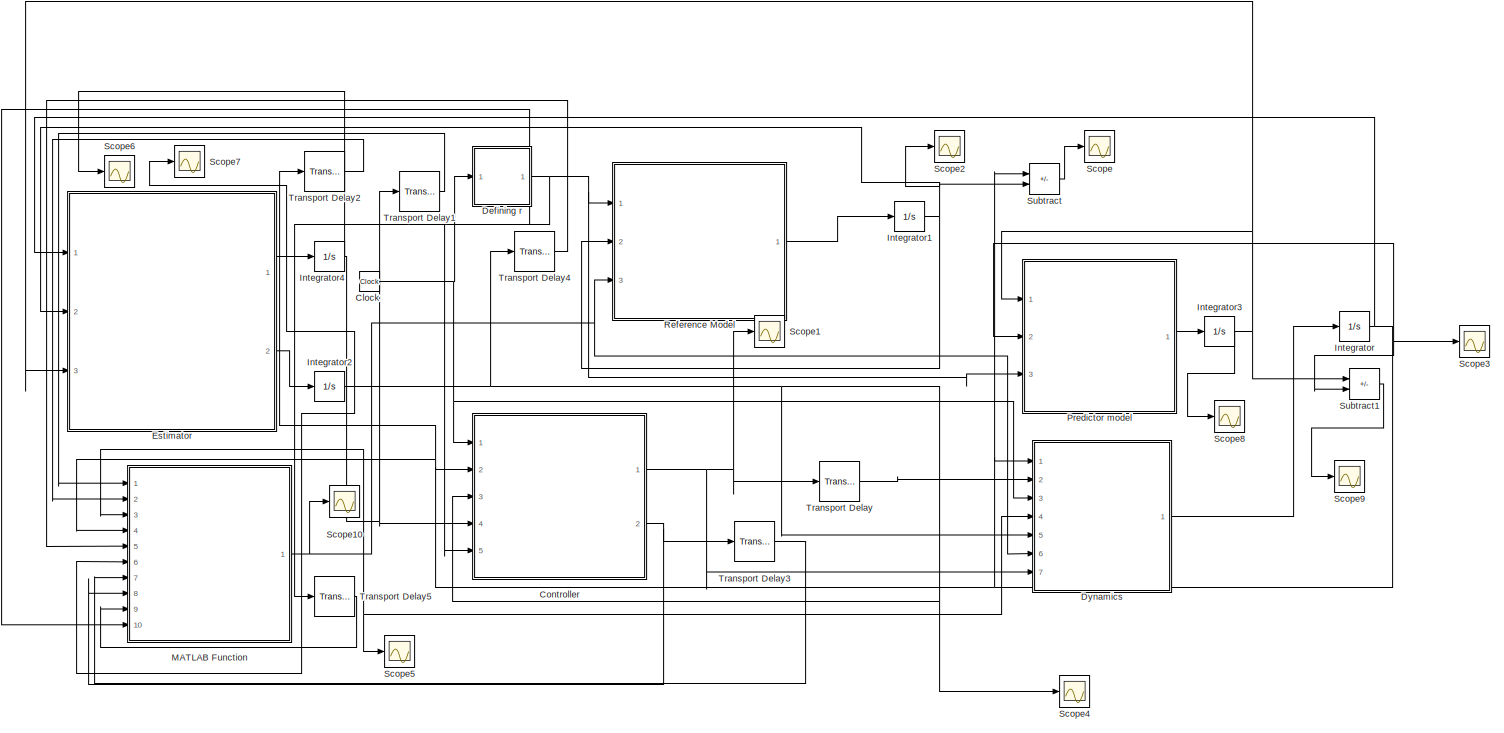
[diagram: root canvas - part 1/1, most of the canvas]
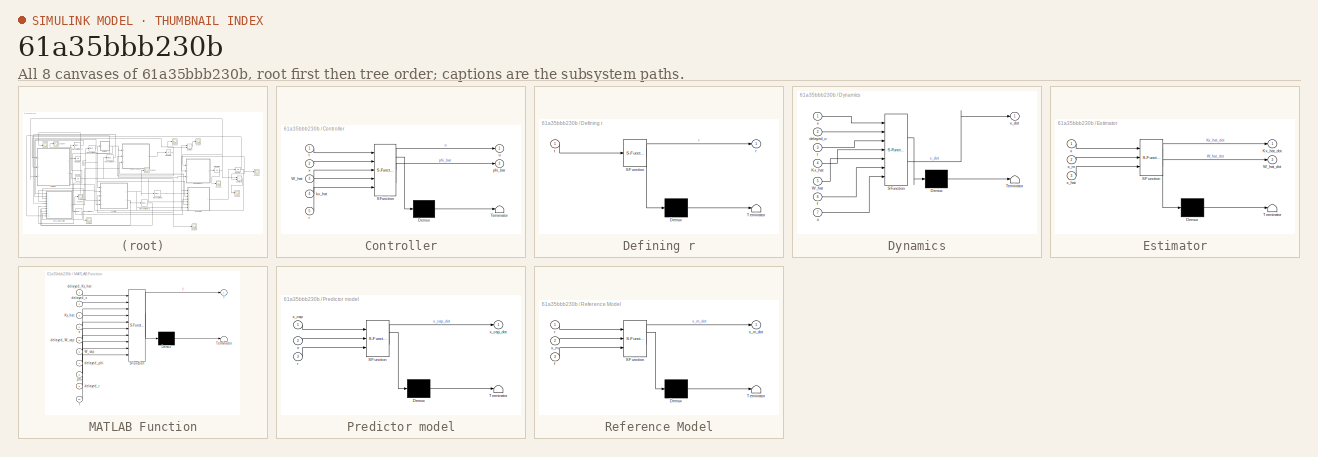
[diagram: thumbnail index - all 8 canvases of the model, root first then tree order]
MODEL slx_61a35bbb230b
KIND model
CONFIG AbsTol = auto
CONFIG EnableMultiTasking = on
CONFIG FixedStep = 0.1
CONFIG MaxStep = auto
CONFIG MinStep = auto
CONFIG RelTol = 1e-1
CONFIG SampleTimeConstraint = Unconstrained
CONFIG SolverName = VariableStepAuto
CONFIG StartTime = 0.0
CONFIG StopTime = 100
BLOCK [Clock] Clock
  Decimation = 50
BLOCK [SubSystem] Controller
  ErrorFcn = Stateflow.Translate.translate
  PermitHierarchicalResolution = ExplicitOnly
  Ports = [5, 2]
  RequestExecContextInheritance = off
  SFBlockType = MATLAB Function
  TreatAsAtomicUnit = on
BLOCK [Demux] Controller/ Demux 
  Outputs = 1
  Ports = [1, 1]
BLOCK [S-Function] Controller/ SFunction 
  EnableBusSupport = on
  FunctionName = sf_sfun
  PortCounts = [5 3]
  Ports = [5, 3]
  SFcnIsStateOwnerBlock = off
  SFunctionDeploymentMode = off
  Tag = Stateflow S-Function 1
BLOCK [Terminator] Controller/ Terminator 
BLOCK [Inport] Controller/W_hat
  Port = 3
BLOCK [Inport] Controller/kx_hat
  Port = 4
BLOCK [Outport] Controller/phi_bar
  Port = 2
BLOCK [Inport] Controller/r
  Port = 5
BLOCK [Inport] Controller/t
BLOCK [Outport] Controller/u
BLOCK [Inport] Controller/x
  Port = 2
BLOCK [SubSystem] Defining r
  ErrorFcn = Stateflow.Translate.translate
  PermitHierarchicalResolution = ExplicitOnly
  Ports = [1, 1]
  RequestExecContextInheritance = off
  SFBlockType = MATLAB Function
  TreatAsAtomicUnit = on
BLOCK [Demux] Defining r/ Demux 
  Outputs = 1
  Ports = [1, 1]
BLOCK [S-Function] Defining r/ SFunction 
  EnableBusSupport = on
  FunctionName = sf_sfun
  PortCounts = [1 2]
  Ports = [1, 2]
  SFcnIsStateOwnerBlock = off
  SFunctionDeploymentMode = off
  Tag = Stateflow S-Function 7
BLOCK [Terminator] Defining r/ Terminator 
BLOCK [Outport] Defining r/r
BLOCK [Inport] Defining r/t
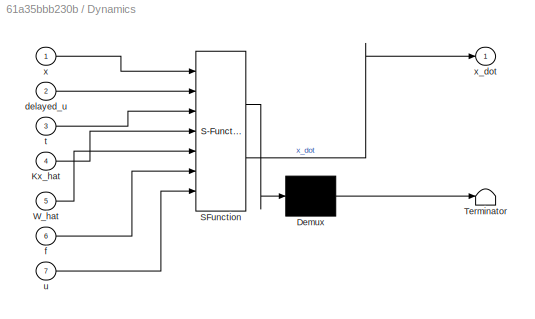
BLOCK [SubSystem] Dynamics
  ErrorFcn = Stateflow.Translate.translate
  PermitHierarchicalResolution = ExplicitOnly
  Ports = [7, 1]
  RequestExecContextInheritance = off
  SFBlockType = MATLAB Function
  TreatAsAtomicUnit = on
BLOCK [Demux] Dynamics/ Demux 
  Outputs = 1
  Ports = [1, 1]
BLOCK [S-Function] Dynamics/ SFunction 
  EnableBusSupport = on
  FunctionName = sf_sfun
  PortCounts = [7 2]
  Ports = [7, 2]
  SFcnIsStateOwnerBlock = off
  SFunctionDeploymentMode = off
  Tag = Stateflow S-Function 2
BLOCK [Terminator] Dynamics/ Terminator 
BLOCK [Inport] Dynamics/Kx_hat
  Port = 4
BLOCK [Inport] Dynamics/W_hat
  Port = 5
BLOCK [Inport] Dynamics/delayed_u
  Port = 2
BLOCK [Inport] Dynamics/f
  Port = 6
BLOCK [Inport] Dynamics/t
  Port = 3
BLOCK [Inport] Dynamics/u
  Port = 7
BLOCK [Inport] Dynamics/x
BLOCK [Outport] Dynamics/x_dot
BLOCK [SubSystem] Estimator
  ErrorFcn = Stateflow.Translate.translate
  PermitHierarchicalResolution = ExplicitOnly
  Ports = [3, 2]
  RequestExecContextInheritance = off
  SFBlockType = MATLAB Function
  TreatAsAtomicUnit = on
BLOCK [Demux] Estimator/ Demux 
  Outputs = 1
  Ports = [1, 1]
BLOCK [S-Function] Estimator/ SFunction 
  EnableBusSupport = on
  FunctionName = sf_sfun
  PortCounts = [3 3]
  Ports = [3, 3]
  SFcnIsStateOwnerBlock = off
  SFunctionDeploymentMode = off
  Tag = Stateflow S-Function 6
BLOCK [Terminator] Estimator/ Terminator 
BLOCK [Outport] Estimator/Kx_hat_dot
BLOCK [Outport] Estimator/W_hat_dot
  Port = 2
BLOCK [Inport] Estimator/x
BLOCK [Inport] Estimator/x_hat
  Port = 3
BLOCK [Inport] Estimator/x_m
  Port = 2
BLOCK [Integrator] Integrator
  InitialCondition = [-1;1]
  Ports = [1, 1]
BLOCK [Integrator] Integrator1
  InitialCondition = [0;0]
  Ports = [1, 1]
BLOCK [Integrator] Integrator2
  InitialCondition = zeros(6,1)
  Ports = [1, 1]
BLOCK [Integrator] Integrator3
  InitialCondition = [-1;1]
  Ports = [1, 1]
BLOCK [Integrator] Integrator4
  InitialCondition = zeros(2,1)
  Ports = [1, 1]
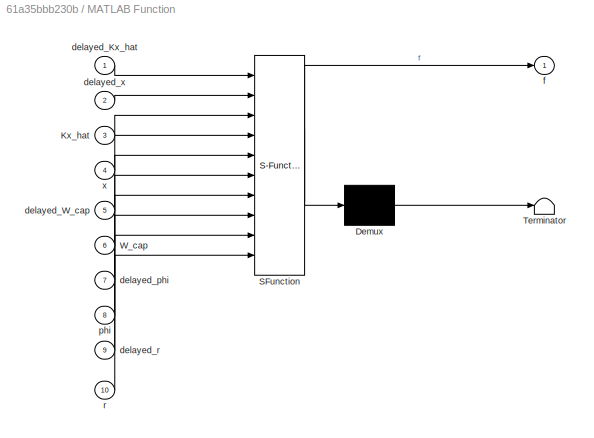
BLOCK [SubSystem] MATLAB Function
  ErrorFcn = Stateflow.Translate.translate
  PermitHierarchicalResolution = ExplicitOnly
  Ports = [10, 1]
  RequestExecContextInheritance = off
  SFBlockType = MATLAB Function
  TreatAsAtomicUnit = on
BLOCK [Demux] MATLAB Function/ Demux 
  Outputs = 1
  Ports = [1, 1]
BLOCK [S-Function] MATLAB Function/ SFunction 
  EnableBusSupport = on
  FunctionName = sf_sfun
  PortCounts = [10 2]
  Ports = [10, 2]
  SFcnIsStateOwnerBlock = off
  SFunctionDeploymentMode = off
  Tag = Stateflow S-Function 5
BLOCK [Terminator] MATLAB Function/ Terminator 
BLOCK [Inport] MATLAB Function/Kx_hat
  Port = 3
BLOCK [Inport] MATLAB Function/W_cap
  Port = 6
BLOCK [Inport] MATLAB Function/delayed_Kx_hat
BLOCK [Inport] MATLAB Function/delayed_W_cap
  Port = 5
BLOCK [Inport] MATLAB Function/delayed_phi
  Port = 7
BLOCK [Inport] MATLAB Function/delayed_r
  Port = 9
BLOCK [Inport] MATLAB Function/delayed_x
  Port = 2
BLOCK [Outport] MATLAB Function/f
BLOCK [Inport] MATLAB Function/phi
  Port = 8
BLOCK [Inport] MATLAB Function/r
  Port = 10
BLOCK [Inport] MATLAB Function/x
  Port = 4
BLOCK [SubSystem] Predictor model
  ErrorFcn = Stateflow.Translate.translate
  PermitHierarchicalResolution = ExplicitOnly
  Ports = [3, 1]
  RequestExecContextInheritance = off
  SFBlockType = MATLAB Function
  TreatAsAtomicUnit = on
BLOCK [Demux] Predictor model/ Demux 
  Outputs = 1
  Ports = [1, 1]
BLOCK [S-Function] Predictor model/ SFunction 
  EnableBusSupport = on
  FunctionName = sf_sfun
  PortCounts = [3 2]
  Ports = [3, 2]
  SFcnIsStateOwnerBlock = off
  SFunctionDeploymentMode = off
  Tag = Stateflow S-Function 3
BLOCK [Terminator] Predictor model/ Terminator 
BLOCK [Inport] Predictor model/r
  Port = 3
BLOCK [Inport] Predictor model/x
  Port = 2
BLOCK [Inport] Predictor model/x_cap
BLOCK [Outport] Predictor model/x_cap_dot
BLOCK [SubSystem] Reference Model
  ErrorFcn = Stateflow.Translate.translate
  PermitHierarchicalResolution = ExplicitOnly
  Ports = [3, 1]
  RequestExecContextInheritance = off
  SFBlockType = MATLAB Function
  TreatAsAtomicUnit = on
BLOCK [Demux] Reference Model/ Demux 
  Outputs = 1
  Ports = [1, 1]
BLOCK [S-Function] Reference Model/ SFunction 
  EnableBusSupport = on
  FunctionName = sf_sfun
  PortCounts = [3 2]
  Ports = [3, 2]
  SFcnIsStateOwnerBlock = off
  SFunctionDeploymentMode = off
  Tag = Stateflow S-Function 4
BLOCK [Terminator] Reference Model/ Terminator 
BLOCK [Inport] Reference Model/f
  Port = 3
BLOCK [Inport] Reference Model/r
BLOCK [Inport] Reference Model/x_m
  Port = 2
BLOCK [Outport] Reference Model/x_m_dot
BLOCK [Scope] Scope
  Floating = off
  NumInputPorts = 1
  Ports = [1]
  ScopeSpecificationString = Simulink.scopes.TimeScopeBlockCfg('CurrentConfiguration', extmgr.ConfigurationSet(extmgr.Configuration('Core','General UI',true),extmgr.Configuration('Core','Source UI',true),extmgr.Configuration('Sources','WiredSimulink',true,'DataLoggingLimitDataPoints',true,'DataLoggingSaveFormat','Array','DataLoggingDecimation','1','DataLoggingDecimateData',true),extmgr.Configuration('Visuals','Time Domain',tr...<+1669ch>
BLOCK [Scope] Scope1
  Floating = off
  NumInputPorts = 1
  Ports = [1]
  ScopeSpecificationString = Simulink.scopes.TimeScopeBlockCfg('CurrentConfiguration', extmgr.ConfigurationSet(extmgr.Configuration('Core','General UI',true),extmgr.Configuration('Core','Source UI',true),extmgr.Configuration('Sources','WiredSimulink',true,'DataLoggingVariableName','ScopeData1','DataLoggingLimitDataPoints',true,'DataLoggingSaveFormat','Array','DataLoggingDecimation','1','DataLoggingDecimateData',true),extmgr.C...<+1720ch>
BLOCK [Scope] Scope10
  Floating = off
  NumInputPorts = 1
  Ports = [1]
  ScopeSpecificationString = Simulink.scopes.TimeScopeBlockCfg('CurrentConfiguration', extmgr.ConfigurationSet(extmgr.Configuration('Core','General UI',true),extmgr.Configuration('Core','Source UI',true),extmgr.Configuration('Sources','WiredSimulink',true,'DataLoggingVariableName','ScopeData5','DataLoggingLimitDataPoints',true,'DataLoggingSaveFormat','Array','DataLoggingDecimation','1','DataLoggingDecimateData',true),extmgr.C...<+1722ch>
BLOCK [Scope] Scope2
  Floating = off
  NumInputPorts = 1
  Ports = [1]
  ScopeSpecificationString = Simulink.scopes.TimeScopeBlockCfg('CurrentConfiguration', extmgr.ConfigurationSet(extmgr.Configuration('Core','General UI',true),extmgr.Configuration('Core','Source UI',true),extmgr.Configuration('Sources','WiredSimulink',true,'DataLoggingVariableName','ScopeData2','DataLoggingLimitDataPoints',true,'DataLoggingSaveFormat','Array','DataLoggingDecimation','1','DataLoggingDecimateData',true),extmgr.C...<+1714ch>
BLOCK [Scope] Scope3
  Floating = off
  NumInputPorts = 1
  Ports = [1]
  ScopeSpecificationString = Simulink.scopes.TimeScopeBlockCfg('CurrentConfiguration', extmgr.ConfigurationSet(extmgr.Configuration('Core','General UI',true),extmgr.Configuration('Core','Source UI',true),extmgr.Configuration('Sources','WiredSimulink',true,'DataLoggingVariableName','ScopeData1','DataLoggingLimitDataPoints',true,'DataLoggingSaveFormat','Array','DataLoggingDecimation','1','DataLoggingDecimateData',true),extmgr.C...<+1712ch>
BLOCK [Scope] Scope4
  Floating = off
  NumInputPorts = 1
  Ports = [1]
  ScopeSpecificationString = Simulink.scopes.TimeScopeBlockCfg('CurrentConfiguration', extmgr.ConfigurationSet(extmgr.Configuration('Core','General UI',true),extmgr.Configuration('Core','Source UI',true),extmgr.Configuration('Sources','WiredSimulink',true,'DataLoggingVariableName','ScopeData2','DataLoggingLimitDataPoints',true,'DataLoggingSaveFormat','Array','DataLoggingDecimation','1','DataLoggingDecimateData',true),extmgr.C...<+1745ch>
BLOCK [Scope] Scope5
  Floating = off
  NumInputPorts = 1
  Ports = [1]
  ScopeSpecificationString = Simulink.scopes.TimeScopeBlockCfg('CurrentConfiguration', extmgr.ConfigurationSet(extmgr.Configuration('Core','General UI',true),extmgr.Configuration('Core','Source UI',true),extmgr.Configuration('Sources','WiredSimulink',true,'DataLoggingVariableName','ScopeData1','DataLoggingLimitDataPoints',true,'DataLoggingSaveFormat','Array','DataLoggingDecimation','1','DataLoggingDecimateData',true),extmgr.C...<+1689ch>
BLOCK [Scope] Scope6
  Floating = off
  NumInputPorts = 1
  Ports = [1]
  ScopeSpecificationString = Simulink.scopes.TimeScopeBlockCfg('CurrentConfiguration', extmgr.ConfigurationSet(extmgr.Configuration('Core','General UI',true),extmgr.Configuration('Core','Source UI',true),extmgr.Configuration('Sources','WiredSimulink',true,'DataLoggingVariableName','ScopeData1','DataLoggingLimitDataPoints',true,'DataLoggingSaveFormat','Array','DataLoggingDecimation','1','DataLoggingDecimateData',true),extmgr.C...<+1737ch>
BLOCK [Scope] Scope7
  Floating = off
  NumInputPorts = 1
  Ports = [1]
  ScopeSpecificationString = Simulink.scopes.TimeScopeBlockCfg('CurrentConfiguration', extmgr.ConfigurationSet(extmgr.Configuration('Core','General UI',true),extmgr.Configuration('Core','Source UI',true),extmgr.Configuration('Sources','WiredSimulink',true,'DataLoggingVariableName','ScopeData2','DataLoggingLimitDataPoints',true,'DataLoggingSaveFormat','Array','DataLoggingDecimation','1','DataLoggingDecimateData',true),extmgr.C...<+1801ch>
BLOCK [Scope] Scope8
  Floating = off
  NumInputPorts = 1
  Ports = [1]
  ScopeSpecificationString = Simulink.scopes.TimeScopeBlockCfg('CurrentConfiguration', extmgr.ConfigurationSet(extmgr.Configuration('Core','General UI',true),extmgr.Configuration('Core','Source UI',true),extmgr.Configuration('Sources','WiredSimulink',true,'DataLoggingLimitDataPoints',true,'DataLoggingSaveFormat','Array','DataLoggingDecimation','1','DataLoggingDecimateData',true,'DataLoggingVariableName','ScopeData3'),extmgr.C...<+1714ch>
BLOCK [Scope] Scope9
  Floating = off
  NumInputPorts = 1
  Ports = [1]
  ScopeSpecificationString = Simulink.scopes.TimeScopeBlockCfg('CurrentConfiguration', extmgr.ConfigurationSet(extmgr.Configuration('Core','General UI',true),extmgr.Configuration('Core','Source UI',true),extmgr.Configuration('Sources','WiredSimulink',true,'DataLoggingLimitDataPoints',true,'DataLoggingSaveFormat','Array','DataLoggingDecimation','1','DataLoggingDecimateData',true,'DataLoggingVariableName','ScopeData4'),extmgr.C...<+1710ch>
BLOCK [Sum] Subtract
  IconShape = rectangular
  Inputs = +-
  NameLocation = top
  Ports = [2, 1]
BLOCK [Sum] Subtract1
  IconShape = rectangular
  Inputs = +-
  NameLocation = top
  Ports = [2, 1]
BLOCK [TransportDelay] Transport Delay
  DelayTime = 0
  Ports = [1, 1]
BLOCK [TransportDelay] Transport Delay1
  DelayTime = 0
  Ports = [1, 1]
BLOCK [TransportDelay] Transport Delay2
  DelayTime = 0
  Ports = [1, 1]
BLOCK [TransportDelay] Transport Delay3
  DelayTime = 0
  Ports = [1, 1]
BLOCK [TransportDelay] Transport Delay4
  DelayTime = 0
  Ports = [1, 1]
BLOCK [TransportDelay] Transport Delay5
  DelayTime = 0
  Ports = [1, 1]
NET Clock:1 -> Controller:1, Defining r:1, Dynamics:3
NET Controller:1 -> Dynamics:7, Scope1:1, Transport Delay:1
NET Controller:2 -> MATLAB Function:8, Transport Delay3:1
NET Defining r:1 -> Controller:5, MATLAB Function:10, Predictor model:3, Reference Model:1, Transport Delay5:1
LINE Dynamics:1 -> Integrator:1
LINE Estimator:1 -> Integrator4:1
LINE Estimator:2 -> Integrator2:1
NET Integrator1:1 -> Estimator:2, Reference Model:2, Scope2:1, Subtract:2
NET Integrator2:1 -> Controller:3, Dynamics:5, MATLAB Function:6, Scope4:1, Scope7:1, Transport Delay4:1
NET Integrator3:1 -> Estimator:3, Predictor model:1, Scope8:1, Subtract1:1
NET Integrator4:1 -> Controller:4, Dynamics:4, MATLAB Function:3, Scope5:1, Scope6:1, Transport Delay1:1
NET Integrator:1 -> Controller:2, Dynamics:1, Estimator:1, MATLAB Function:4, Predictor model:2, Scope3:1, Subtract1:2, Subtract:1, Transport Delay2:1
NET MATLAB Function:1 -> Dynamics:6, Reference Model:3, Scope10:1
LINE Predictor model:1 -> Integrator3:1
LINE Reference Model:1 -> Integrator1:1
LINE Subtract1:1 -> Scope9:1
LINE Subtract:1 -> Scope:1
LINE Transport Delay1:1 -> MATLAB Function:1
LINE Transport Delay2:1 -> MATLAB Function:2
LINE Transport Delay3:1 -> MATLAB Function:7
LINE Transport Delay4:1 -> MATLAB Function:5
LINE Transport Delay5:1 -> MATLAB Function:9
LINE Transport Delay:1 -> Dynamics:2
note: NET lines group one-source signal fan-out (src -> all destinations, sorted); 1:1 wires keep LINE
CHART Defining r states=1 transitions=1
  STATE_LABEL 'eML_blk_kernel()'
  STATE_LABEL 'SCRIPT:\nfunction r   = define_r(t)\nr = sin(t);'
CHART Controller states=1 transitions=1
  STATE_LABEL 'eML_blk_kernel()'
  STATE_LABEL "SCRIPT:\nfunction [u,phi_bar]   = controller(t,x,W_hat,kx_hat,r)\n\n%r=10;\n%r=exp(-t);\n\n%r=sin(t);\n\n%k_x=[-2/3 -1/3]'; % note that the linear control gain is directly chosen instead of adapting with an assumption of $A$ matrix to be known\ntheta=x(1,1);\np=x(2,1);\nphi_bar = [1; theta; p; abs(theta)*p; abs(p)*p; theta^3];\n\nu=kx_hat'*x-W_hat'*phi_bar+r;\n\nend"
CHART Dynamics states=1 transitions=1
  STATE_LABEL 'eML_blk_kernel()'
  STATE_LABEL "SCRIPT:\nfunction x_dot = dynamics(x,delayed_u,t,Kx_hat,W_hat,f,u)\n\nL_delta_a=1;\n\nA=[0 1; 0 0];\n\na0=0.8;\na1=0.2314;\na2=0.6918;\na3=-0.6245;\na4=0.0095;\na5=0.0214;\n\nB=[0 1]';\n\ntheta=x(1,1);\np=x(2,1);\n\nW = [a0;a1;a2;a3;a4;a5];\nphi_bar = [1; theta; p; abs(theta)*p; abs(p)*p; theta^3];\n%phi_bar =[1;1;1;1;1;1];\n\nA_ref = [0,1;-2,-1];\n%Bc = [0;1];\n%r = sin(t);\nlambda = 1;\nKx = [2;6];\ndelta=a0+a1*theta+a2*p+...<+197ch>"
CHART Predictor model states=1 transitions=1
  STATE_LABEL 'eML_blk_kernel()'
  STATE_LABEL 'SCRIPT:\nfunction x_cap_dot = predictor( x_cap, x, r)\n\n\nam1=-2;\nam2=-1;\nA_ref=[0 1; am1 am2];\n\nA_prd =4* A_ref;\n\n\nL_delta_a=1;\nB_c=[0; L_delta_a];\n\nx_cap_dot = A_prd*(x_cap-x) + A_ref*x + B_c*r;\n'
CHART Reference Model states=1 transitions=1
  STATE_LABEL 'eML_blk_kernel()'
  STATE_LABEL "SCRIPT:\nfunction x_m_dot   = reference(r,x_m,f)\nam1=-2;\nam2=-1;\nL_delta_a=1;\n%r=exp(-t);\n%r=sin(t);\n%r=2*sin(t);\n%A_ref=A+B*k_x';\nA_ref=[0 1; am1 am2];\nB_c=[0; L_delta_a];\nx_m_dot=A_ref*x_m+f+B_c*r;"
CHART MATLAB Function states=1 transitions=1
  STATE_LABEL 'eML_blk_kernel()'
  STATE_LABEL "SCRIPT:\nfunction f = fcn(delayed_Kx_hat,delayed_x,Kx_hat,x,delayed_W_cap,W_cap,delayed_phi,phi,delayed_r,r)\nB = [0;1];\nlambda = 1;\n\nf = B*lambda*(delayed_Kx_hat'*delayed_x-Kx_hat'*x-delayed_W_cap'*delayed_phi+W_cap'*phi+delayed_r-r);"
CHART Estimator states=1 transitions=1
  STATE_LABEL 'eML_blk_kernel()'
  STATE_LABEL 'SCRIPT:\nfunction [Kx_hat_dot, W_hat_dot] = fcn(x, x_m, x_hat)\n\n%gamma_x = [1,0;\n %          2,1];\ngamma_x=2*eye(2);\n%gamma_w = [1,0,1,2,3,4;\n  %         3,4,1,2,5,6;\n  %         5,2,1,6,8,3;\n  %         2,4,5,7,2,1;\n  %         4,5,1,2,6,3;\n  %         7,9,0,1,3,0];\ngamma_w=10*eye(6);\n\ntheta=x(1,1);\np=x(2,1);\nphi_bar = [1; theta; p; abs(theta)*p; abs(p)*p; theta^3];\n\n%P_ref = [1.75,-0.5;-0.5,3];s\n...<+310ch>'
CHART  states=0 transitions=0
CHART  states=0 transitions=0
CHART  states=0 transitions=0
CHART  states=0 transitions=0
CHART  states=0 transitions=0
CHART  states=0 transitions=0
CHART  states=0 transitions=0
